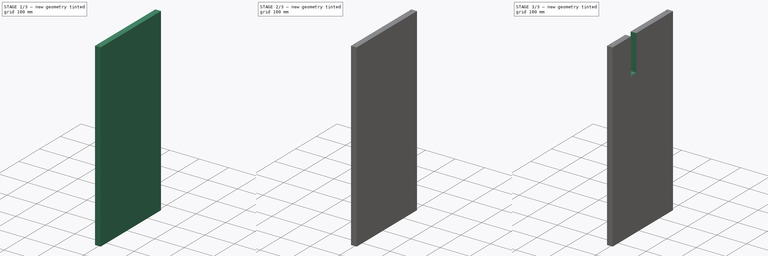
[diagram: build sequence overview — one tinted view per stage of 3, left to right]
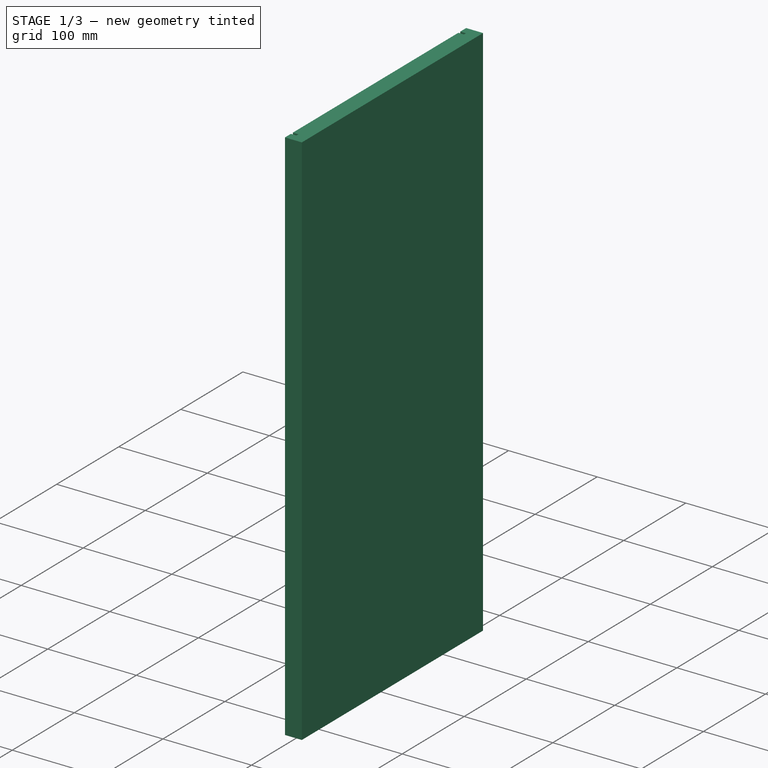
[diagram: stage 1 of 3 — iso view after this stage's code; geometry added in this stage tinted green]
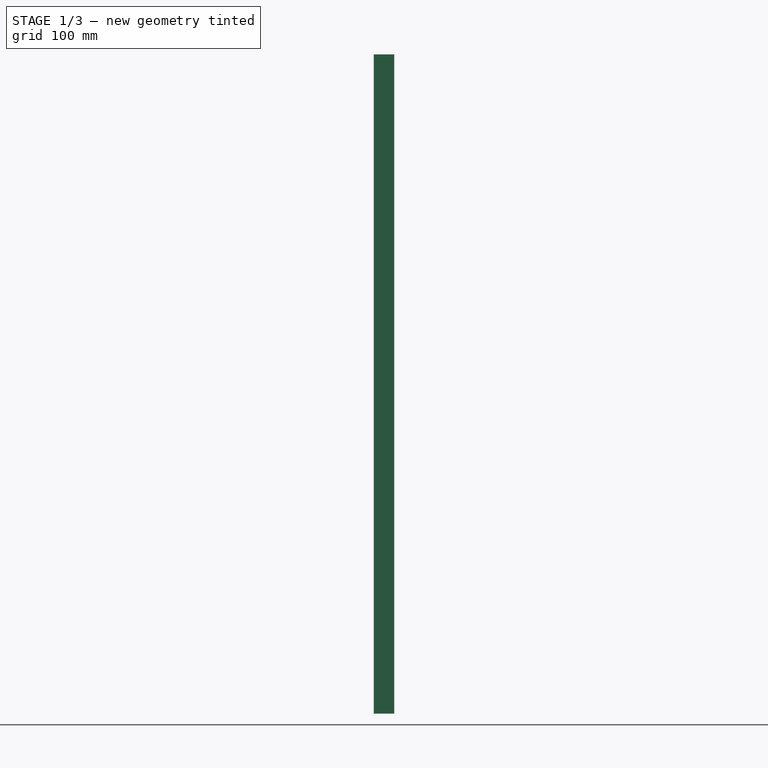
[diagram: stage 1 of 3 — front view after this stage's code; geometry added in this stage tinted green]
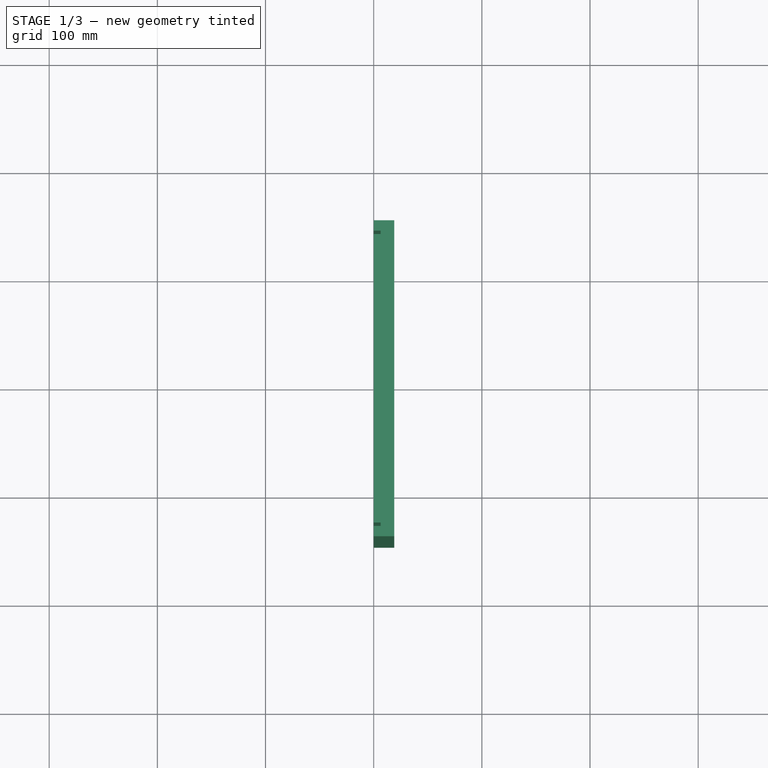
[diagram: stage 1 of 3 — top view after this stage's code; geometry added in this stage tinted green]
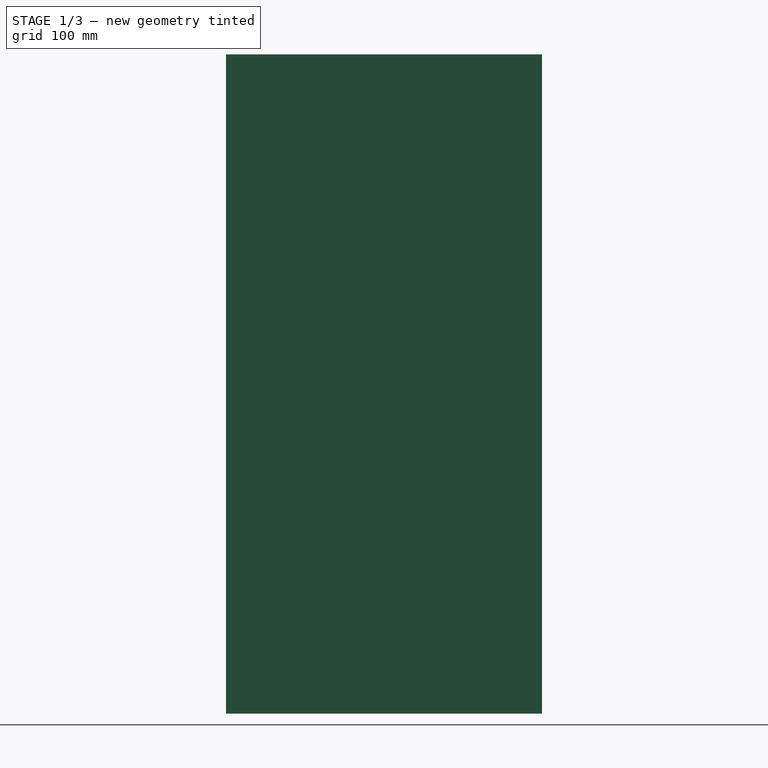
[diagram: stage 1 of 3 — right view after this stage's code; geometry added in this stage tinted green]
FCSTD DOCUMENT  (FreeCAD 0.19R24291 (Git))
Label: rightpanel
License: All rights reserved
LicenseURL: http://en.wikipedia.org/wiki/All_rights_reserved
objects: PartDesign::SubtractiveCylinder×4, PartDesign::SubtractiveBox×3, Sketcher::SketchObject×1, PartDesign::Pad×1, PartDesign::Body×1, App::Part×1
note: 18 computed .brp shape members not serialized (recipe doc carries the construction recipe); baked Part::Feature solids carry a one-line shape summary decoded from their .brp

FEATURE [Sketcher::SketchObject] Sketch
  FullyConstrained = false
  MapMode = 5
  Placement = pos=(0,0,0) rot=(0.57735,0.57735,0.57735;2.0944rad)
  Support = -> [YZ_Plane001]
  sketch-geometry (4):
    g0: LineSegment StartX=-146.05 StartY=0 StartZ=0 EndX=-146.05 EndY=609.6 EndZ=0
    g1: LineSegment StartX=-146.05 StartY=609.6 StartZ=0 EndX=146.05 EndY=609.6 EndZ=0
    g2: LineSegment StartX=146.05 StartY=609.6 StartZ=0 EndX=146.05 EndY=0 EndZ=0
    g3: LineSegment StartX=146.05 StartY=0 StartZ=0 EndX=-146.05 EndY=0 EndZ=0
  constraints (8):
    c: PointOnObject(g0,g-1)
    c: Vertical(g0)
    c: Coincident(g1,g0)
    c: Horizontal(g1)
    c: PointOnObject(g2,g-1)
    c: Vertical(g2)
    c: Coincident(g3,g2)
    c: Coincident(g3,g0)
FEATURE [PartDesign::Pad] Pad
  Direction = (1,1,1)
  Length = 19.05
  Length2 = 99.9998
  Placement = pos=(0,0,0) rot=(0.57735,0.57735,0.57735;2.0944rad)
  Profile = -> Sketch
  Refine = true
  Type = 0
FEATURE [PartDesign::SubtractiveBox] Box
  AttacherType = Attacher::AttachEngine3D
  AttachmentOffset = pos=(133.35,-609.6,-6.35) rot=(0,0,1;0rad)
  BaseFeature = -> Pad
  Height = 107.95
  Length = 3.175
  MapMode = 5
  Placement = pos=(6.35,133.35,609.6) rot=(0.57735,0.57735,-0.57735;4.18879rad)
  Refine = true
  Support = -> [Pad]
  Width = 609.6
FEATURE [PartDesign::SubtractiveBox] Box001
  AttacherType = Attacher::AttachEngine3D
  AttachmentOffset = pos=(-269.875,0,-6.35) rot=(0,0,1;0rad)
  BaseFeature = -> Box
  Height = 6.35
  Length = 3.175
  MapMode = 5
  Placement = pos=(6.35,-136.525,609.6) rot=(0.57735,0.57735,-0.57735;4.18879rad)
  Refine = true
  Support = -> [Box]
  Width = 609.6
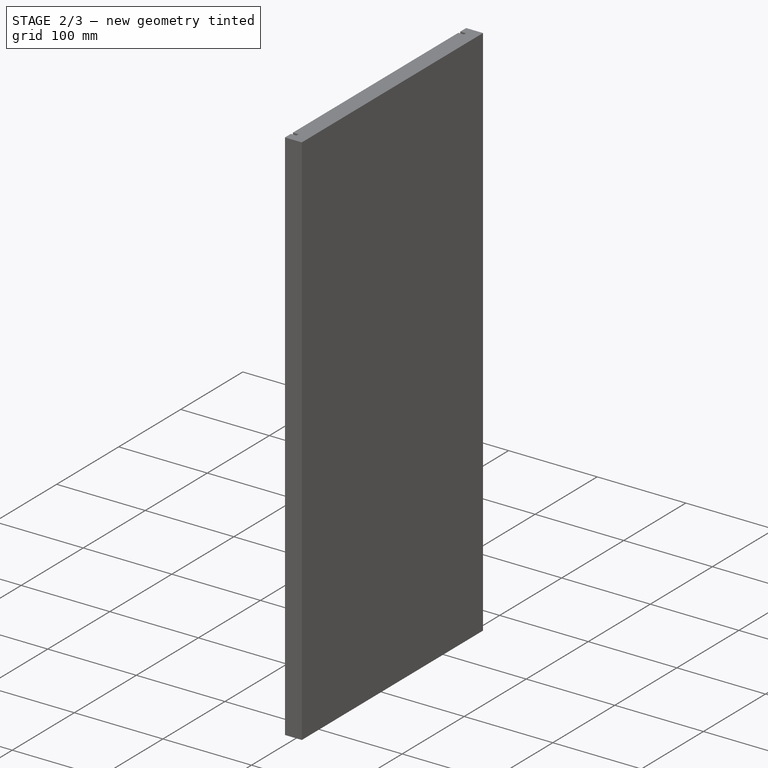
[diagram: stage 2 of 3 — iso view after this stage's code; geometry added in this stage tinted green]
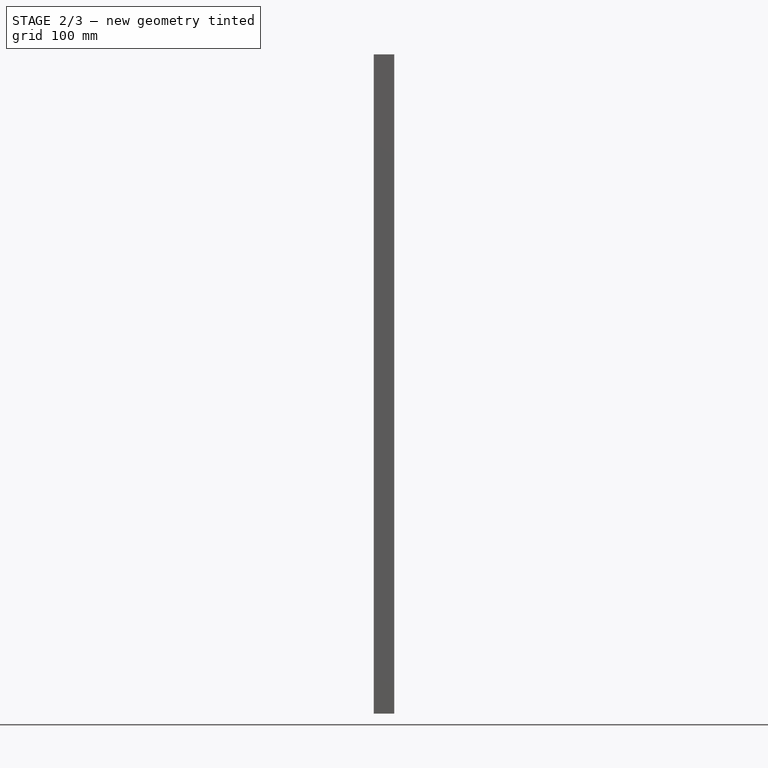
[diagram: stage 2 of 3 — front view after this stage's code; geometry added in this stage tinted green]
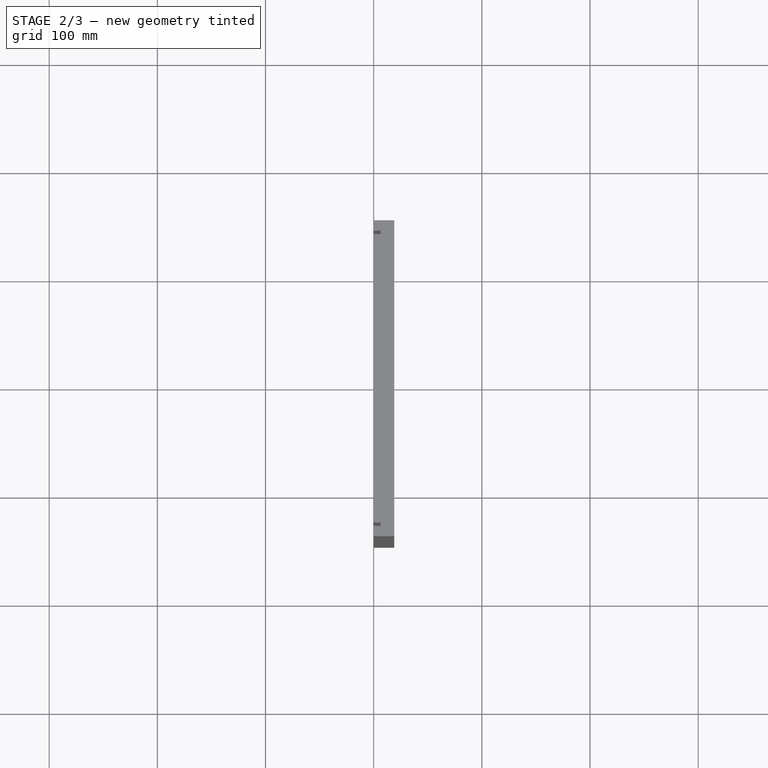
[diagram: stage 2 of 3 — top view after this stage's code; geometry added in this stage tinted green]
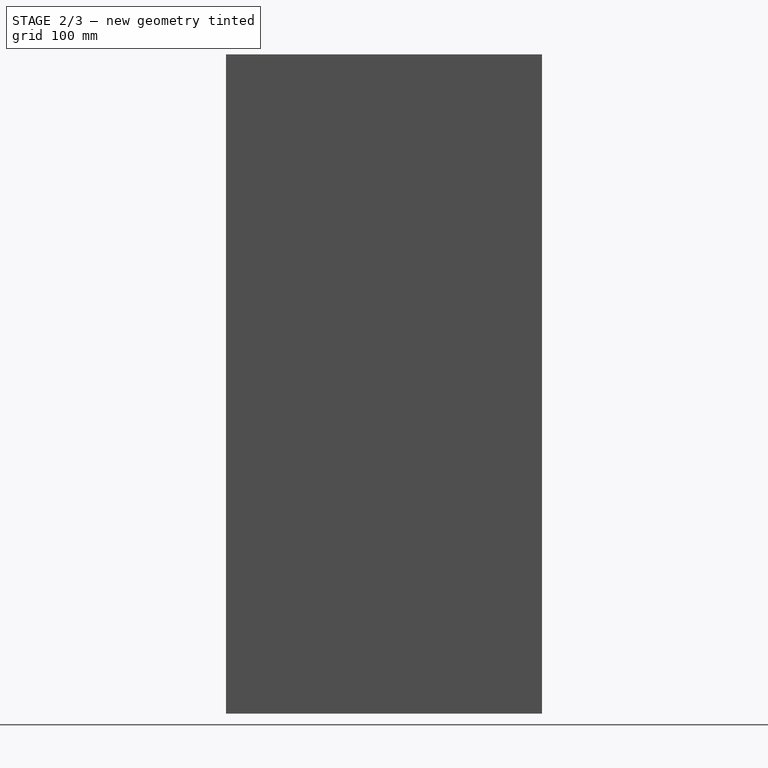
[diagram: stage 2 of 3 — right view after this stage's code; geometry added in this stage tinted green]
FEATURE [PartDesign::SubtractiveCylinder] Cylinder
  Angle = 360
  AttacherType = Attacher::AttachEngine3D
  AttachmentOffset = pos=(73.025,165.1,-6.35) rot=(0,0,1;0rad)
  BaseFeature = -> Box001
  Height = 6.35
  MapMode = 5
  Placement = pos=(6.35,-63.5,444.5) rot=(-0.57735,-0.57735,0.57735;2.0944rad)
  Radius = 6.35
  Refine = true
  Support = -> [Box001]
FEATURE [PartDesign::SubtractiveCylinder] Cylinder001
  Angle = 360
  AttacherType = Attacher::AttachEngine3D
  AttachmentOffset = pos=(101.6,0,-6.35) rot=(0,0,1;0rad)
  BaseFeature = -> Cylinder
  Height = 6.35
  MapMode = 5
  Placement = pos=(6.35,38.1,444.5) rot=(-0.57735,-0.57735,0.57735;2.0944rad)
  Radius = 6.35
  Refine = true
  Support = -> [Cylinder]
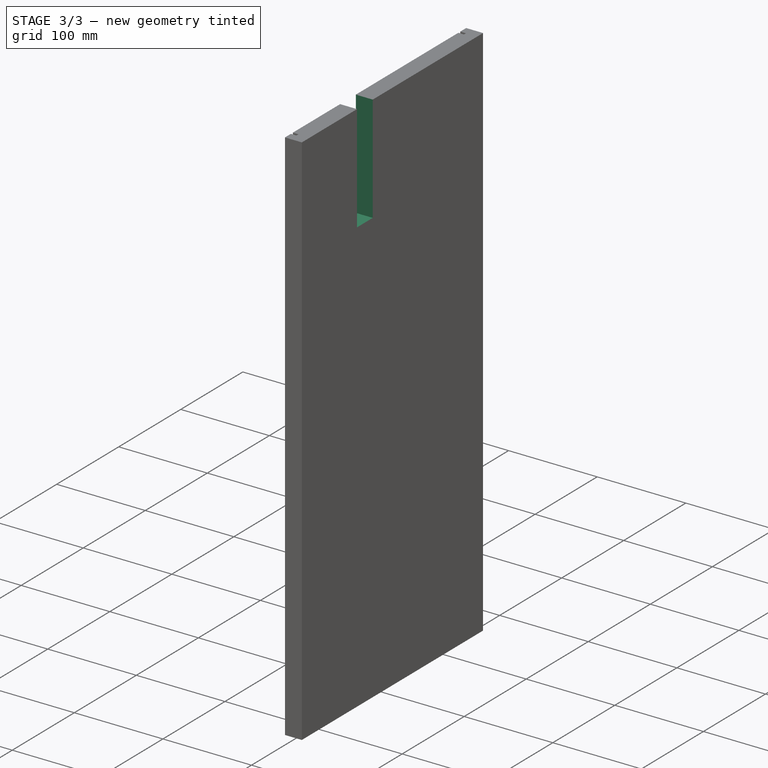
[diagram: stage 3 of 3 — iso view after this stage's code; geometry added in this stage tinted green]
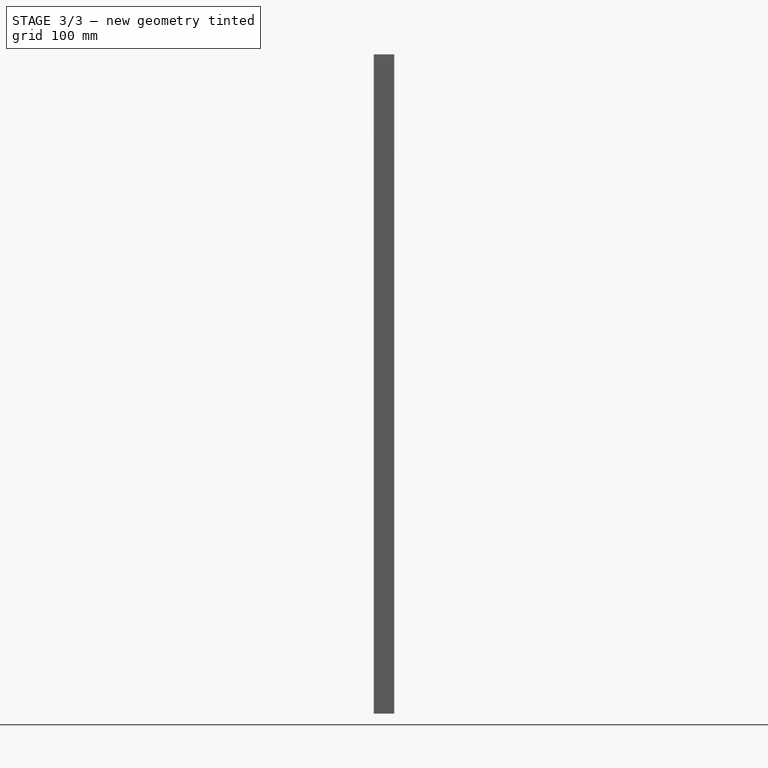
[diagram: stage 3 of 3 — front view after this stage's code; geometry added in this stage tinted green]
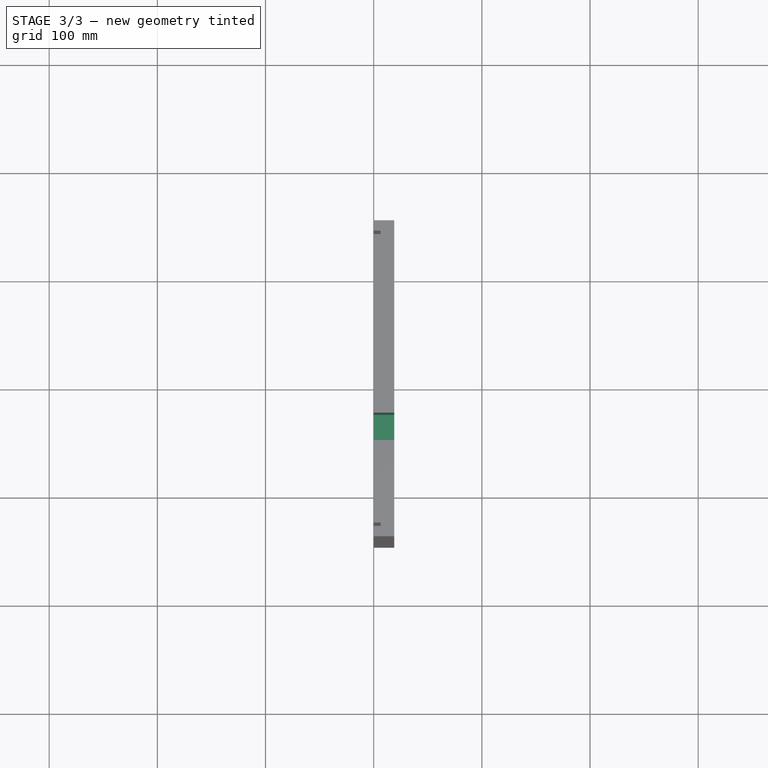
[diagram: stage 3 of 3 — top view after this stage's code; geometry added in this stage tinted green]
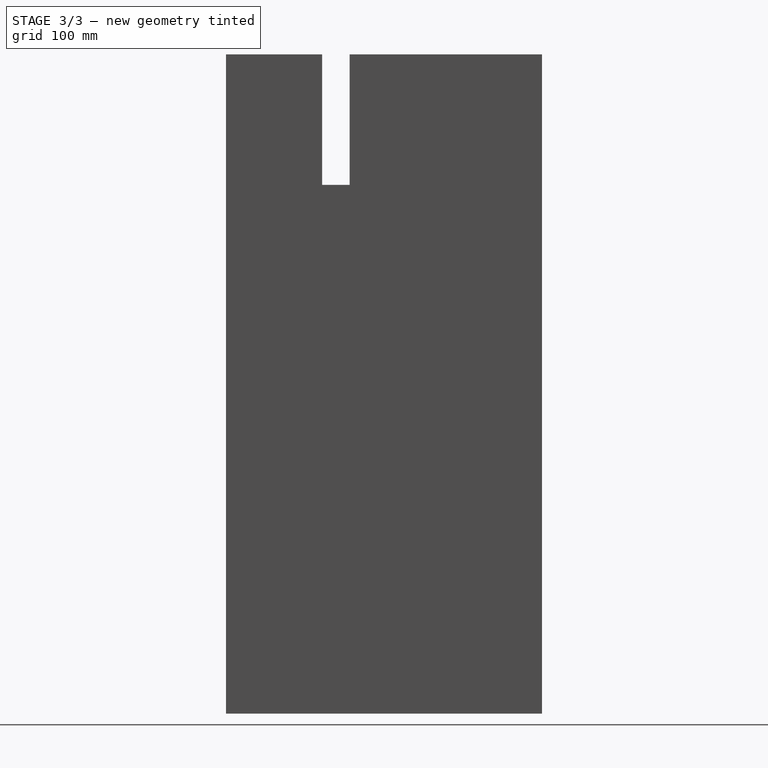
[diagram: stage 3 of 3 — right view after this stage's code; geometry added in this stage tinted green]
FEATURE [PartDesign::SubtractiveCylinder] Cylinder002
  Angle = 360
  AttacherType = Attacher::AttachEngine3D
  AttachmentOffset = pos=(0,254,-6.35) rot=(0,0,1;0rad)
  BaseFeature = -> Cylinder001
  Height = 6.35
  MapMode = 5
  Placement = pos=(6.35,38.1,190.5) rot=(-0.57735,-0.57735,0.57735;2.0944rad)
  Radius = 6.35
  Refine = true
  Support = -> [Cylinder001]
FEATURE [PartDesign::SubtractiveCylinder] Cylinder003
  Angle = 360
  AttacherType = Attacher::AttachEngine3D
  AttachmentOffset = pos=(-101.6,0,-6.35) rot=(0,0,1;0rad)
  BaseFeature = -> Cylinder002
  Height = 6.35
  MapMode = 5
  Placement = pos=(6.35,-63.5,190.5) rot=(-0.57735,-0.57735,0.57735;2.0944rad)
  Radius = 6.35
  Refine = true
  Support = -> [Cylinder002]
FEATURE [PartDesign::SubtractiveBox] Box002  label="concutout"
  AttacherType = Attacher::AttachEngine3D
  AttachmentOffset = pos=(6.35,-419.1,-19.05) rot=(0,0,1;0rad)
  BaseFeature = -> Cylinder003
  Height = 19.05
  Length = 25.4
  MapMode = 5
  Placement = pos=(19.05,-57.15,609.6) rot=(-0.57735,-0.57735,0.57735;2.0944rad)
  Refine = true
  Support = -> [Cylinder003]
  Width = 120.65
FEATURE [PartDesign::Body] Body  label="raspi_body"
  Group = -> [Sketch,Pad,Box,Box001,Cylinder,Cylinder001,Cylinder002,Cylinder003,Box002]
  Origin = -> Origin001
  Tip = -> Box002
FEATURE [App::Part] Part  label="right_part"
  Group = -> [Body]
  Origin = -> Origin
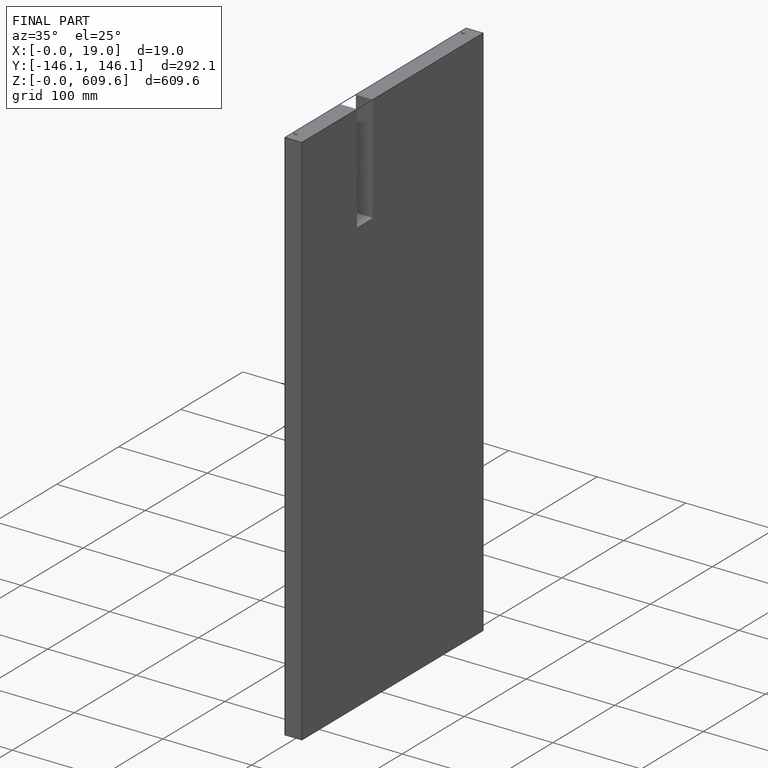
[diagram: finished part — iso view with bounding-box wireframe]
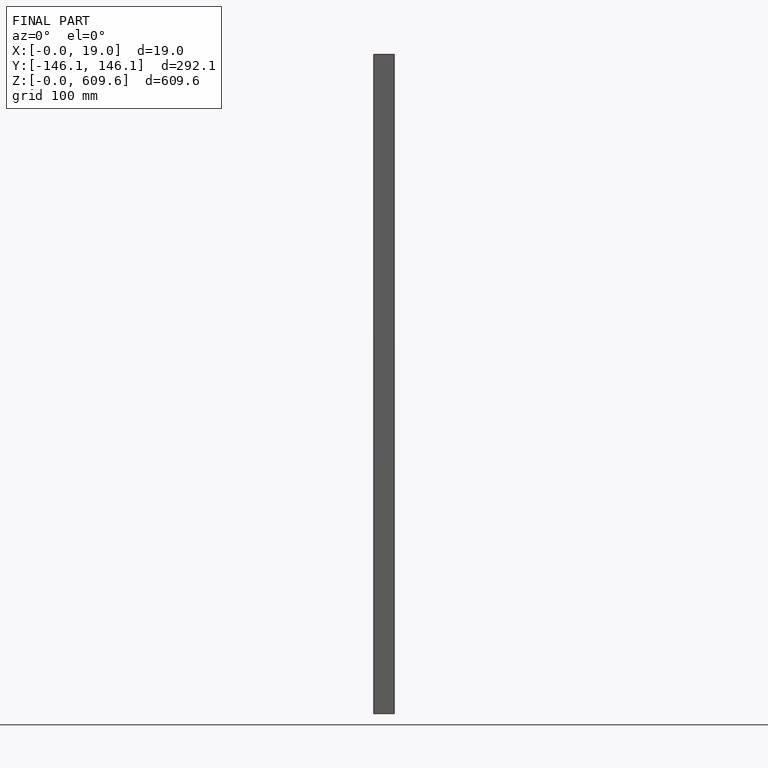
[diagram: finished part — front view with bounding-box wireframe]
